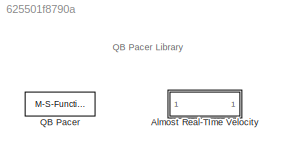
MODEL slx_625501f8790a
KIND library
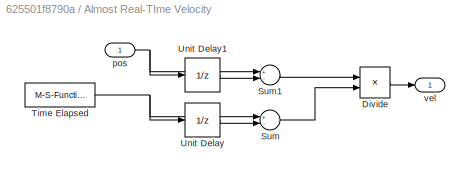
BLOCK [SubSystem] Almost Real-TIme Velocity
  Ports = [1, 1]
  RequestExecContextInheritance = off
  Variant = off
BLOCK [Product] Almost Real-TIme Velocity/Divide
  InputSameDT = off
  Inputs = */
  OutDataTypeStr = Inherit: Inherit via internal rule
  Ports = [2, 1]
  RndMeth = Floor
  SaturateOnIntegerOverflow = off
BLOCK [Sum] Almost Real-TIme Velocity/Sum
  IconShape = round
  InputSameDT = off
  Inputs = +-|
  OutDataTypeStr = Inherit: Inherit via internal rule
  Ports = [2, 1]
  SaturateOnIntegerOverflow = off
BLOCK [Sum] Almost Real-TIme Velocity/Sum1
  IconShape = round
  InputSameDT = off
  Inputs = +-|
  OutDataTypeStr = Inherit: Inherit via internal rule
  Ports = [2, 1]
  SaturateOnIntegerOverflow = off
BLOCK [M-S-Function] Almost Real-TIme Velocity/Time Elapsed
  AncestorBlock = realtime_pacer_lib/Real-Time Pacer
  FunctionName = msfun_realtime_elapsed
  Ports = [0, 1]
BLOCK [UnitDelay] Almost Real-TIme Velocity/Unit Delay
  InputProcessing = Elements as channels (sample based)
  SampleTime = -1
BLOCK [UnitDelay] Almost Real-TIme Velocity/Unit Delay1
  InputProcessing = Elements as channels (sample based)
  SampleTime = -1
BLOCK [Inport] Almost Real-TIme Velocity/pos
  IconDisplay = Port number
BLOCK [Outport] Almost Real-TIme Velocity/vel
  IconDisplay = Port number
BLOCK [M-S-Function] QB Pacer
  AncestorBlock = realtime_pacer_lib/Real-Time Pacer
  FunctionName = msfun_realtime_pacer
  Parameters = simTimePerRealTime
  Ports = [0, 1]
ANNOTATION (root): QB Pacer Library
LINE Almost Real-TIme Velocity/Divide:1 -> Almost Real-TIme Velocity/vel:1
LINE Almost Real-TIme Velocity/Sum1:1 -> Almost Real-TIme Velocity/Divide:1
LINE Almost Real-TIme Velocity/Sum:1 -> Almost Real-TIme Velocity/Divide:2
NET Almost Real-TIme Velocity/Time Elapsed:1 -> Almost Real-TIme Velocity/Sum:1, Almost Real-TIme Velocity/Unit Delay:1
LINE Almost Real-TIme Velocity/Unit Delay1:1 -> Almost Real-TIme Velocity/Sum1:2
LINE Almost Real-TIme Velocity/Unit Delay:1 -> Almost Real-TIme Velocity/Sum:2
NET Almost Real-TIme Velocity/pos:1 -> Almost Real-TIme Velocity/Sum1:1, Almost Real-TIme Velocity/Unit Delay1:1
note: NET lines group one-source signal fan-out (src -> all destinations, sorted); 1:1 wires keep LINE
